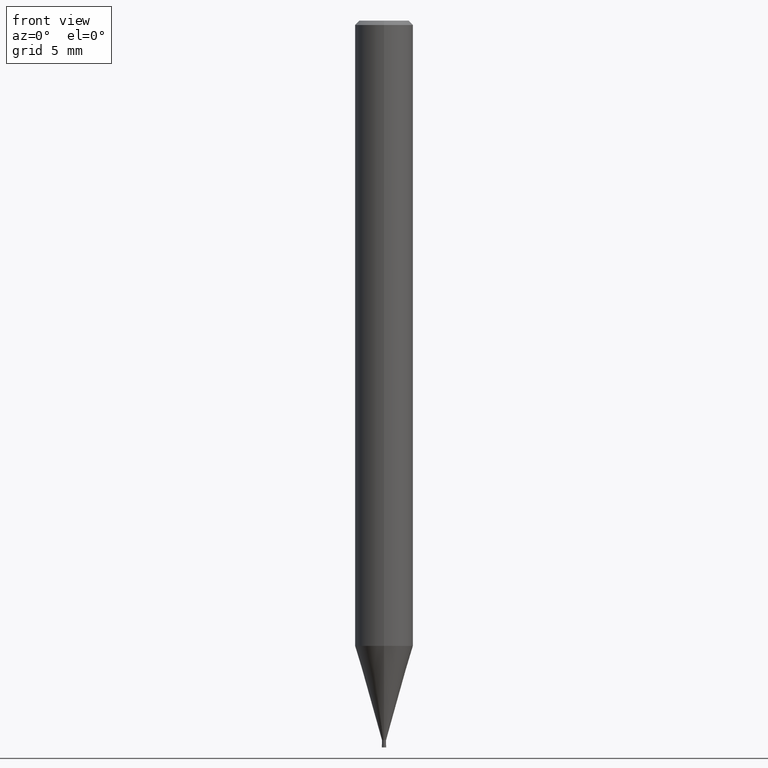
[diagram: clean part render]
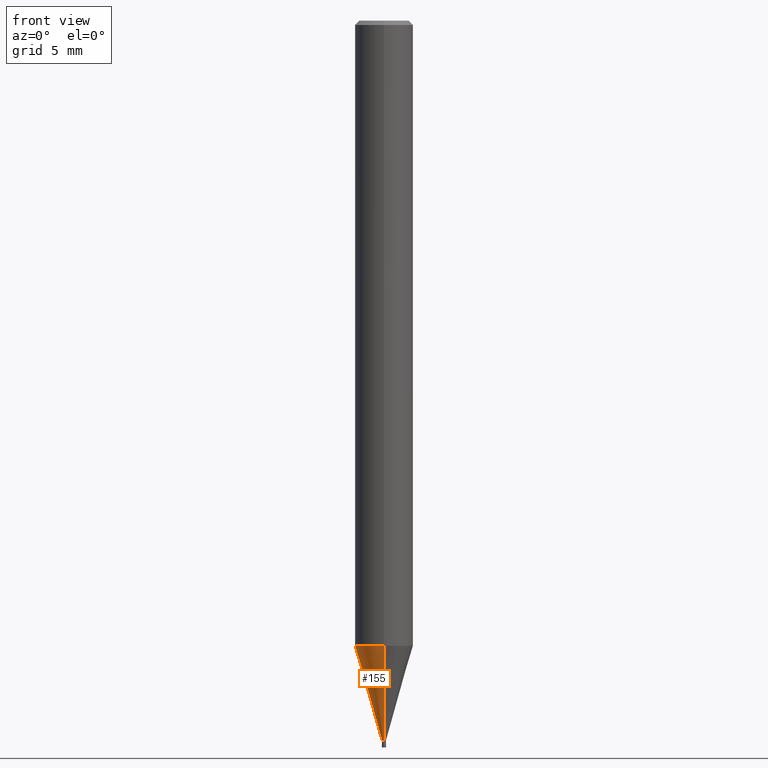
[diagram: same view with one face highlighted and labeled with its STEP entity id]
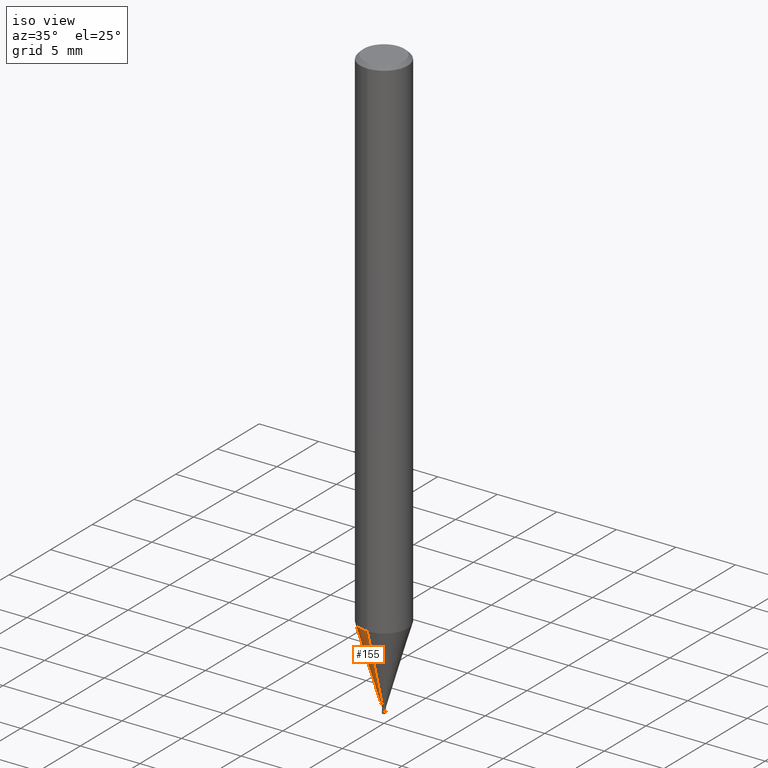
[diagram: same view with one face highlighted and labeled with its STEP entity id]
A machine part, front view. The second image highlights one B-rep face of the part: STEP entity #155.
A second angle (iso view) of the same face is appended — the face is thin or edge-on in the first view.
In plain terms, the highlighted conical surface has half-angle 15.999 deg.
Its self-contained STEP definition (entity closure, byte-faithful):
#155=ADVANCED_FACE('',(#393),#394,.T.);
#165=VERTEX_POINT('',#407);
#215=EDGE_CURVE('',#305,#315,#460,.T.);
#217=EDGE_CURVE('',#347,#305,#462,.T.);
#305=VERTEX_POINT('',#562);
#315=VERTEX_POINT('',#574);
#325=EDGE_CURVE('',#347,#165,#587,.T.);
#333=EDGE_CURVE('',#315,#165,#595,.T.);
#347=VERTEX_POINT('',#610);
#393=FACE_OUTER_BOUND('',#655,.T.);
#394=CONICAL_SURFACE('',#656,1.06995,0.27923596926092);
#407=CARTESIAN_POINT('',(0.0,0.13995,-49.49));
#460=CIRCLE('',#742,1.99995);
#462=LINE('',#745,#746);
#562=CARTESIAN_POINT('',(2.44915147732706E-016,-1.99995,-43.003));
#574=CARTESIAN_POINT('',(0.0,1.99995,-43.003));
#587=CIRCLE('',#901,0.13995);
#595=LINE('',#911,#912);
#610=CARTESIAN_POINT('',(1.71383659217442E-017,-0.13995,-49.49));
#655=EDGE_LOOP('',(#975,#976,#977,#978));
#656=AXIS2_PLACEMENT_3D('',#979,#980,#981);
#742=AXIS2_PLACEMENT_3D('',#1063,#1064,#1065);
#745=CARTESIAN_POINT('',(1.31026756827225E-016,-1.06995,-46.2465));
#746=VECTOR('',#1066,1.0);
#901=AXIS2_PLACEMENT_3D('',#1226,#1227,#1228);
#911=CARTESIAN_POINT('',(-1.31026756827225E-016,1.06995,-46.2465));
#912=VECTOR('',#1232,1.0);
#975=ORIENTED_EDGE('',*,*,#333,.T.);
#976=ORIENTED_EDGE('',*,*,#325,.F.);
#977=ORIENTED_EDGE('',*,*,#217,.T.);
#978=ORIENTED_EDGE('',*,*,#215,.T.);
#979=CARTESIAN_POINT('',(0.0,0.0,-46.2465));
#980=DIRECTION('',(-0.0,-0.0,1.0));
#981=DIRECTION('',(0.0,1.0,0.0));
#1063=CARTESIAN_POINT('',(0.0,0.0,-43.003));
#1064=DIRECTION('',(0.0,0.0,-1.0));
#1065=DIRECTION('',(0.0,1.0,0.0));
#1066=DIRECTION('',(3.37527585527933E-017,-0.275621292078393,0.961266301995986));
#1226=CARTESIAN_POINT('',(0.0,0.0,-49.49));
#1227=DIRECTION('',(0.0,0.0,-1.0));
#1228=DIRECTION('',(0.0,1.0,0.0));
#1232=DIRECTION('',(3.37527585527933E-017,-0.275621292078393,-0.961266301995986));